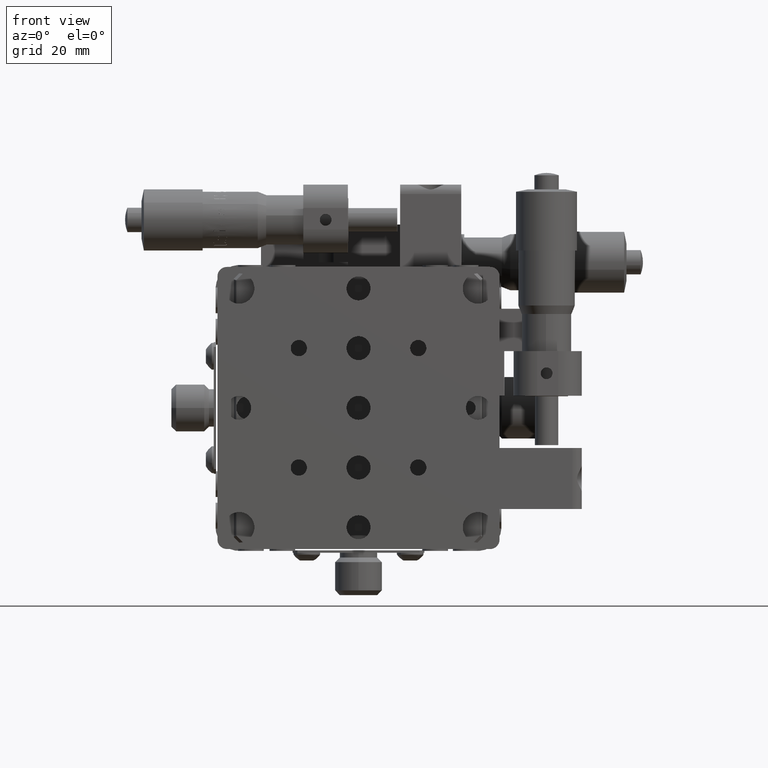
[diagram: clean part render]
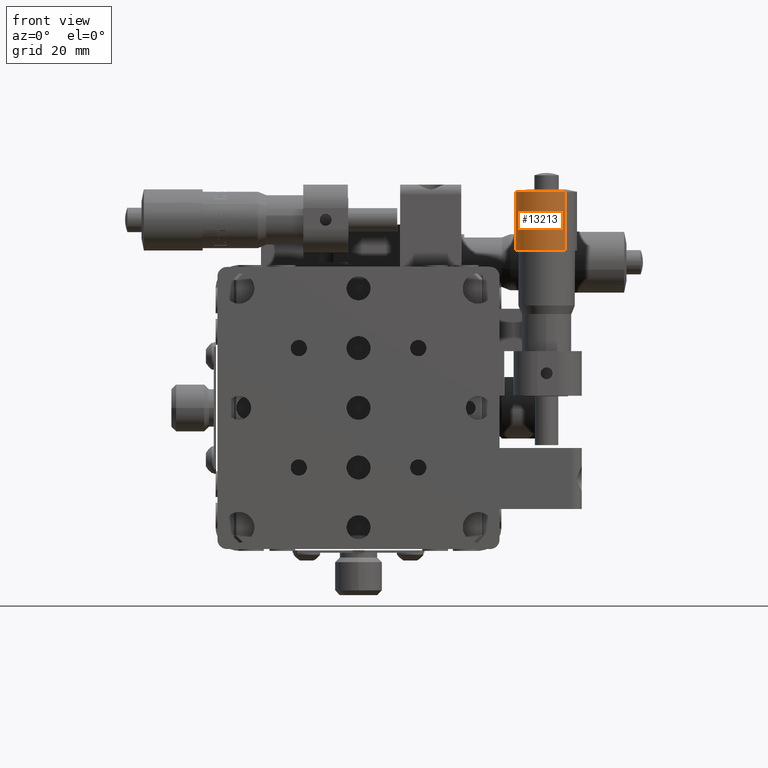
[diagram: same view with one face highlighted and labeled with its STEP entity id]
A machine part, front view. The second image highlights one B-rep face of the part: STEP entity #13213.
In plain terms, the highlighted cylindrical surface (edge-blend (fillet) strip) has radius 6.5 mm, axis along (-0, 0, 1).
Its self-contained STEP definition (entity closure, byte-faithful):
#231 = DIRECTION ( 'NONE',  ( 0.6147219585423602251, -0.7887438834538399446, 0.000000000000000000 ) ) ;
#1134 = EDGE_CURVE ( 'NONE', #51442, #40846, #38338, .T. ) ;
#3600 = CARTESIAN_POINT ( 'NONE',  ( 43.99569273052539842, 4.273164757550000914, 46.00000000000001421 ) ) ;
#3932 = CYLINDRICAL_SURFACE ( 'NONE', #43727, 6.500000000000014211 ) ;
#5886 = VECTOR ( 'NONE', #42982, 1000.000000000000000 ) ;
#6697 = CIRCLE ( 'NONE', #15045, 6.500000000000014211 ) ;
#7218 = DIRECTION ( 'NONE',  ( -1.985969020082118906E-18, 9.582087370709749149E-17, 1.000000000000000000 ) ) ;
#9119 = LINE ( 'NONE', #13149, #19656 ) ;
#9450 = CARTESIAN_POINT ( 'NONE',  ( 36.00430726947469395, 14.52683524244994473, 46.00000000000001421 ) ) ;
#9489 = DIRECTION ( 'NONE',  ( -1.985969020082118906E-18, 9.582087370709749149E-17, 1.000000000000000000 ) ) ;
#9788 = CARTESIAN_POINT ( 'NONE',  ( 40.00000000000004974, 9.399999999999970157, 46.00000000000001421 ) ) ;
#10094 = ORIENTED_EDGE ( 'NONE', *, *, #1134, .T. ) ;
#12020 = CARTESIAN_POINT ( 'NONE',  ( 43.99569273052534868, 4.273164757550018678, 62.54102306920763965 ) ) ;
#12614 = EDGE_CURVE ( 'NONE', #49879, #51442, #19581, .T. ) ;
#13149 = CARTESIAN_POINT ( 'NONE',  ( 36.00430726947465132, 14.52683524244996072, 62.54102306920763965 ) ) ;
#13213 = ADVANCED_FACE ( 'NONE', ( #25907 ), #3932, .T. ) ;
#15045 = AXIS2_PLACEMENT_3D ( 'NONE', #9788, #9489, #231 ) ;
#17237 = DIRECTION ( 'NONE',  ( 0.6147219585423602251, -0.7887438834538399446, 0.000000000000000000 ) ) ;
#19168 = CARTESIAN_POINT ( 'NONE',  ( 36.00430726947465132, 14.52683524244995361, 33.50000000000000000 ) ) ;
#19581 = CIRCLE ( 'NONE', #41793, 6.500000000000014211 ) ;
#19630 = CARTESIAN_POINT ( 'NONE',  ( 39.99999999999999289, 9.399999999999995026, 33.50000000000000000 ) ) ;
#19656 = VECTOR ( 'NONE', #26752, 1000.000000000000000 ) ;
#21159 = CARTESIAN_POINT ( 'NONE',  ( 43.99569273052534157, 4.273164757550024007, 33.50000000000000000 ) ) ;
#21559 = CARTESIAN_POINT ( 'NONE',  ( 40.00000000000000000, 9.399999999999989697, 62.54102306920763965 ) ) ;
#25255 = EDGE_LOOP ( 'NONE', ( #29322, #45283, #10094, #52112 ) ) ;
#25907 = FACE_OUTER_BOUND ( 'NONE', #25255, .T. ) ;
#26752 = DIRECTION ( 'NONE',  ( -1.985969020082118906E-18, 9.582087370709749149E-17, 1.000000000000000000 ) ) ;
#29322 = ORIENTED_EDGE ( 'NONE', *, *, #32343, .F. ) ;
#32343 = EDGE_CURVE ( 'NONE', #49879, #39711, #9119, .T. ) ;
#38338 = LINE ( 'NONE', #12020, #5886 ) ;
#39711 = VERTEX_POINT ( 'NONE', #9450 ) ;
#40846 = VERTEX_POINT ( 'NONE', #3600 ) ;
#41793 = AXIS2_PLACEMENT_3D ( 'NONE', #19630, #7218, #47145 ) ;
#42982 = DIRECTION ( 'NONE',  ( -1.985969020082118906E-18, 9.582087370709749149E-17, 1.000000000000000000 ) ) ;
#43727 = AXIS2_PLACEMENT_3D ( 'NONE', #21559, #56889, #17237 ) ;
#45283 = ORIENTED_EDGE ( 'NONE', *, *, #12614, .T. ) ;
#45629 = EDGE_CURVE ( 'NONE', #39711, #40846, #6697, .T. ) ;
#47145 = DIRECTION ( 'NONE',  ( 0.6147219585423602251, -0.7887438834538399446, 0.000000000000000000 ) ) ;
#49879 = VERTEX_POINT ( 'NONE', #19168 ) ;
#51442 = VERTEX_POINT ( 'NONE', #21159 ) ;
#52112 = ORIENTED_EDGE ( 'NONE', *, *, #45629, .F. ) ;
#56889 = DIRECTION ( 'NONE',  ( -1.985969020082118906E-18, 9.582087370709749149E-17, 1.000000000000000000 ) ) ;